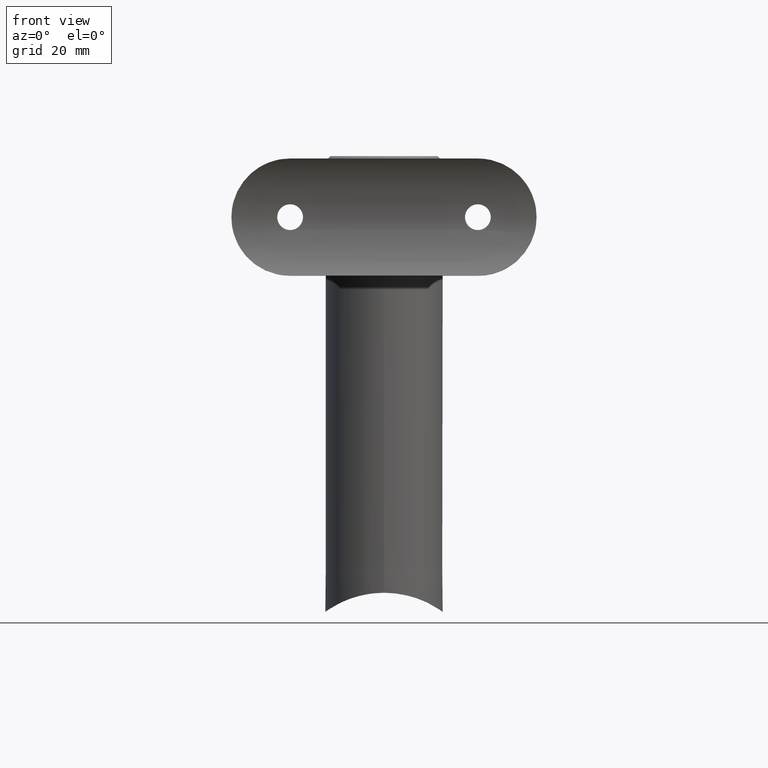
[diagram: clean part render]
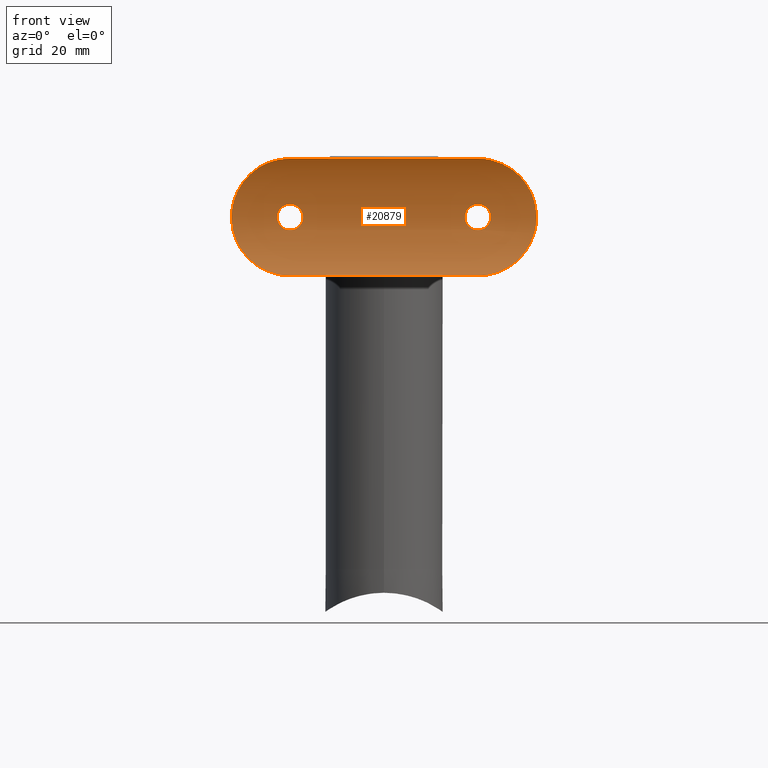
[diagram: same view with one face highlighted and labeled with its STEP entity id]
A machine part, front view. The second image highlights one B-rep face of the part: STEP entity #20879.
In plain terms, the highlighted cylindrical surface (partial cylindrical patch) has radius 21.2 mm, axis along (1, -0, -0).
Its self-contained STEP definition (entity closure, byte-faithful):
#43 = CARTESIAN_POINT ( 'NONE',  ( -1.220232600810219115, 4.034489897479165421, 17.52896393627658966 ) ) ;
#111 = CARTESIAN_POINT ( 'NONE',  ( -0.8872650160237232075, 4.017919217146488364, 17.39083392256410932 ) ) ;
#256 = CARTESIAN_POINT ( 'NONE',  ( 2.899666870893740089, 4.195241269652991711, 32.16611798350432139 ) ) ;
#516 = EDGE_CURVE ( 'NONE', #6899, #1200, #11149, .T. ) ;
#651 = CARTESIAN_POINT ( 'NONE',  ( -3.302492734939010965, 4.254893961373074518, -32.06307353030366158 ) ) ;
#798 = CARTESIAN_POINT ( 'NONE',  ( -12.16642152362135221, 7.838305269537122477, -22.89829279892429170 ) ) ;
#899 = CARTESIAN_POINT ( 'NONE',  ( -2.186773948034176129, 4.112846586535695792, -18.32292299748403863 ) ) ;
#958 = CARTESIAN_POINT ( 'NONE',  ( 1.819301347328477592, 4.077824434303353840, -22.06995905193007701 ) ) ;
#1029 = CARTESIAN_POINT ( 'NONE',  ( 1.217645684097064640, 4.034348782382250143, -17.52777022303583365 ) ) ;
#1048 = CARTESIAN_POINT ( 'NONE',  ( -1.220232600810218893, 4.034489897479164533, -22.47103606372340678 ) ) ;
#1115 = CARTESIAN_POINT ( 'NONE',  ( -1.378123184462039630, 4.044310109982500734, -22.38653694269787309 ) ) ;
#1138 = CARTESIAN_POINT ( 'NONE',  ( 2.072456574894707249, 4.101159231709450737, 18.18354421627330098 ) ) ;
#1167 = CARTESIAN_POINT ( 'NONE',  ( 2.188337416416101799, 4.113007975951379791, -21.67510126677116133 ) ) ;
#1193 = CARTESIAN_POINT ( 'NONE',  ( -2.750066109718241503, 4.179126174284530038, -19.82143988479807462 ) ) ;
#1200 = VERTEX_POINT ( 'NONE', #17901 ) ;
#1242 = CARTESIAN_POINT ( 'NONE',  ( 2.749871213976514461, 4.179100677581973677, -19.81625335284126876 ) ) ;
#1282 = CARTESIAN_POINT ( 'NONE',  ( 2.749871213976514461, 4.179100677581973677, 20.18374664715872413 ) ) ;
#1329 = CARTESIAN_POINT ( 'NONE',  ( -11.20502510935213358, 7.199201472346334896, 25.59990303977420467 ) ) ;
#1468 = CARTESIAN_POINT ( 'NONE',  ( -12.08472937843046857, 7.780467016947508974, 23.30072972297891454 ) ) ;
#1540 = CARTESIAN_POINT ( 'NONE',  ( -3.307977677724411869, 4.255752225252749987, 32.06158553790278631 ) ) ;
#1556 = CARTESIAN_POINT ( 'NONE',  ( 0.8482395851185927649, 4.000000000000004441, 32.50000000000000000 ) ) ;
#1611 = CARTESIAN_POINT ( 'NONE',  ( -0.8487943003396123398, 4.000000000000004441, 32.50000000000000711 ) ) ;
#1627 = CARTESIAN_POINT ( 'NONE',  ( -2.750066109718241503, 4.179126174284529149, 20.17856011520192894 ) ) ;
#1691 = CARTESIAN_POINT ( 'NONE',  ( -2.185395019286270557, 4.112698827525287371, 18.32094041698626441 ) ) ;
#1756 = ORIENTED_EDGE ( 'NONE', *, *, #516, .F. ) ;
#1911 = CARTESIAN_POINT ( 'NONE',  ( 9.913493343117123047, 6.458488917965734544, 27.62450805720243707 ) ) ;
#2058 = CARTESIAN_POINT ( 'NONE',  ( 10.82440004562426772, 6.964469962909634049, 26.30269686619442737 ) ) ;
#2176 = CARTESIAN_POINT ( 'NONE',  ( -7.664485972305215000, 5.431176652695318019, -29.88260659836541322 ) ) ;
#2248 = CARTESIAN_POINT ( 'NONE',  ( 0.000000000000000000, 4.000000000000003553, -32.50000000000000000 ) ) ;
#2306 = ORIENTED_EDGE ( 'NONE', *, *, #3348, .F. ) ;
#2319 = CARTESIAN_POINT ( 'NONE',  ( -4.488656383330082988, 4.477012003651389627, -31.67346302616766351 ) ) ;
#2396 = CARTESIAN_POINT ( 'NONE',  ( -9.404962878365171974, 6.198203738630026827, -28.24361247481622783 ) ) ;
#2451 = CARTESIAN_POINT ( 'NONE',  ( 12.50000000000000355, 8.077208171562682892, -20.00000000000000355 ) ) ;
#2480 = CARTESIAN_POINT ( 'NONE',  ( 0.000000000000000000, 4.000000000000003553, 17.25000000000000000 ) ) ;
#2526 = CARTESIAN_POINT ( 'NONE',  ( 11.20502510935213358, 7.199201472346334008, -25.59990303977420822 ) ) ;
#2624 = EDGE_CURVE ( 'NONE', #16306, #18264, #4971, .T. ) ;
#2704 = CARTESIAN_POINT ( 'NONE',  ( 2.661687631057439329, 4.167723121593580160, -19.28582453466965418 ) ) ;
#2746 = CARTESIAN_POINT ( 'NONE',  ( 9.919985569846220486, 6.456967504733636787, -27.64830385797707990 ) ) ;
#2780 = EDGE_CURVE ( 'NONE', #14045, #17653, #20728, .T. ) ;
#2817 = CARTESIAN_POINT ( 'NONE',  ( 2.662694855646243308, 4.167851017011681591, 19.28957292388486167 ) ) ;
#2867 = CARTESIAN_POINT ( 'NONE',  ( -2.072974537964579422, 4.101199954475355902, -18.18391155527806902 ) ) ;
#2914 = CARTESIAN_POINT ( 'NONE',  ( 2.750127420739391759, 4.179134195129150520, -20.17987132482983981 ) ) ;
#2948 = CARTESIAN_POINT ( 'NONE',  ( 2.609840854434543722, 4.161141973927121818, 19.11473913055440477 ) ) ;
#2997 = CARTESIAN_POINT ( 'NONE',  ( -4.105999603327870950, 4.397476152548232875, 31.81377709549067845 ) ) ;
#3024 = CARTESIAN_POINT ( 'NONE',  ( 0.7170653856862929665, 4.011384657461850800, 17.33895450424505569 ) ) ;
#3140 = CARTESIAN_POINT ( 'NONE',  ( -5.620677554943400267, 4.744079628429565432, 31.19483348254708943 ) ) ;
#3238 = FACE_BOUND ( 'NONE', #10739, .T. ) ;
#3348 = EDGE_CURVE ( 'NONE', #8308, #17246, #16805, .T. ) ;
#3435 = CARTESIAN_POINT ( 'NONE',  ( -2.608905194646347070, 4.161026952861326400, 19.11220103331600839 ) ) ;
#3583 = CARTESIAN_POINT ( 'NONE',  ( 7.341278511869139045, 5.308480845423155792, 30.12523760879152945 ) ) ;
#3656 = CARTESIAN_POINT ( 'NONE',  ( 11.20516604691104412, 7.199313738460709544, 25.59920734051991076 ) ) ;
#3721 = CARTESIAN_POINT ( 'NONE',  ( 12.16642152362135576, 7.838305269537123365, 22.89829279892429170 ) ) ;
#4048 = CARTESIAN_POINT ( 'NONE',  ( -9.137400882198218000, 6.067735843547091612, -28.53911077795326889 ) ) ;
#4183 = CARTESIAN_POINT ( 'NONE',  ( 1.680376849083642821, 4.050750502668658548, -32.41446829867825130 ) ) ;
#4193 = VERTEX_POINT ( 'NONE', #19426 ) ;
#4298 = CARTESIAN_POINT ( 'NONE',  ( -2.749933515456789657, 4.179108828000702935, -20.18059065072479896 ) ) ;
#4316 = CARTESIAN_POINT ( 'NONE',  ( 11.83620638877005504, 7.607798498856690017, -24.10069751121964643 ) ) ;
#4345 = CARTESIAN_POINT ( 'NONE',  ( 0.7170653856862895248, 4.011384657461851688, -22.66104549575494431 ) ) ;
#4364 = CARTESIAN_POINT ( 'NONE',  ( -2.471867391659464008, 4.144485322468558053, -18.78144226944219142 ) ) ;
#4439 = CARTESIAN_POINT ( 'NONE',  ( -1.676932437200538084, 4.065896379661495530, -22.18693385621928371 ) ) ;
#4468 = CARTESIAN_POINT ( 'NONE',  ( 1.221068417309932208, 4.034547152056659591, 17.52946335822547397 ) ) ;
#4488 = CARTESIAN_POINT ( 'NONE',  ( 0.7132524485124348557, 4.011257119951380901, -17.33794282899279438 ) ) ;
#4504 = CARTESIAN_POINT ( 'NONE',  ( -2.608905194646345738, 4.161026952861327288, -20.88779896668399161 ) ) ;
#4557 = CARTESIAN_POINT ( 'NONE',  ( 1.380612209768696141, 4.044466479386152891, -22.38518657137107226 ) ) ;
#4577 = CARTESIAN_POINT ( 'NONE',  ( -8.275097588008394567, 5.678865835620642954, 29.37734438678382176 ) ) ;
#4598 = CARTESIAN_POINT ( 'NONE',  ( 1.217645684097064418, 4.034348782382251031, 22.47222977696416990 ) ) ;
#4644 = CARTESIAN_POINT ( 'NONE',  ( -2.903656776258741967, 4.195777031998702888, 32.16519419076994524 ) ) ;
#4666 = CARTESIAN_POINT ( 'NONE',  ( 2.732401257049309251, 4.176793343845548456, 19.64134432217262116 ) ) ;
#4792 = CARTESIAN_POINT ( 'NONE',  ( -0.7124931324106920094, 4.011245734592164602, 17.33785575772860099 ) ) ;
#4793 = CARTESIAN_POINT ( 'NONE',  ( 0.000000000000000000, 4.000000000000003553, 32.50000000000000000 ) ) ;
#4919 = DIRECTION ( 'NONE',  ( 0.000000000000000000, 0.000000000000000000, -1.000000000000000000 ) ) ;
#4927 = CARTESIAN_POINT ( 'NONE',  ( -2.661820409375530438, 4.167739817158831350, 20.71384517538371739 ) ) ;
#4971 = B_SPLINE_CURVE_WITH_KNOTS ( 'NONE', 3,
 ( #2451, #20552, #13826, #15527, #4316, #2526, #20476, #2746, #5946, #12203, #5794, #15667, #14117, #17224, #17157, #17075, #10706, #12274, #15452, #4183, #9140, #18691 ),
 .UNSPECIFIED., .F., .F.,
 ( 4, 2, 2, 2, 2, 2, 2, 2, 2, 2, 4 ),
 ( 0.000000000000000000, 0.002503829590647115803, 0.005007659181294230738, 0.007511488771941346107, 0.01001531836258846148, 0.01126723315791201482, 0.01251914795323556644, 0.01502297754388266099, 0.01627489233920621087, 0.01752680713452976421, 0.02003063672517686050 ),
 .UNSPECIFIED. ) ;
#5126 = CARTESIAN_POINT ( 'NONE',  ( -12.49999999999999645, 8.077208171562682892, 20.00000000000000000 ) ) ;
#5204 = CARTESIAN_POINT ( 'NONE',  ( -12.49999999999999645, 8.077208171562682892, 32.50000000000006395 ) ) ;
#5246 = B_SPLINE_CURVE_WITH_KNOTS ( 'NONE', 3,
 ( #4793, #1556, #5403, #256, #11873, #6758, #6970, #13377, #19946, #3583, #15121, #6832, #16481, #18304, #6900, #1911, #14912, #2058, #3656, #8460, #8668, #11802, #3721, #18101, #8385, #11737 ),
 .UNSPECIFIED., .F., .F.,
 ( 4, 2, 2, 2, 2, 2, 2, 2, 2, 2, 2, 2, 4 ),
 ( 0.000000000000000000, 0.002504973849704574245, 0.003757460774556858982, 0.005009947699409142419, 0.007514921549113717965, 0.008767408473966002702, 0.01001989539881828657, 0.01127238232367057218, 0.01252486924852285778, 0.01502984309822744113, 0.01628233002307973715, 0.01753481694793202969, 0.02003979079763661478 ),
 .UNSPECIFIED. ) ;
#5403 = CARTESIAN_POINT ( 'NONE',  ( 1.678717414094957006, 4.050679987938036852, 32.41458363564551348 ) ) ;
#5550 = EDGE_CURVE ( 'NONE', #17653, #14045, #8647, .T. ) ;
#5663 = CARTESIAN_POINT ( 'NONE',  ( -8.575483413111351538, 5.809365382594060101, -29.10327369640211614 ) ) ;
#5761 = FACE_BOUND ( 'NONE', #18021, .T. ) ;
#5794 = CARTESIAN_POINT ( 'NONE',  ( 8.275097588008392790, 5.678865835620643843, -29.37734438678382887 ) ) ;
#5905 = CARTESIAN_POINT ( 'NONE',  ( 2.070070275079196609, 4.100923494947652514, -18.18081493655848746 ) ) ;
#5924 = CARTESIAN_POINT ( 'NONE',  ( -2.661820409375529994, 4.167739817158833127, -19.28615482461627906 ) ) ;
#5946 = CARTESIAN_POINT ( 'NONE',  ( 9.413556458363910195, 6.194533709361363272, -28.26249860773988587 ) ) ;
#6047 = CARTESIAN_POINT ( 'NONE',  ( 1.816424646654584141, 4.077575380348869238, -17.92750711898907667 ) ) ;
#6068 = CARTESIAN_POINT ( 'NONE',  ( -1.380068960992046900, 4.044440931482736978, -17.61463312970132833 ) ) ;
#6094 = CARTESIAN_POINT ( 'NONE',  ( 2.608656701138330369, 4.160994223088357202, 20.88876488091200301 ) ) ;
#6140 = CARTESIAN_POINT ( 'NONE',  ( -2.732448131527089874, 4.176798623020331114, -20.35916652536338489 ) ) ;
#6227 = CARTESIAN_POINT ( 'NONE',  ( 0.3580975733128176075, 4.002280310842218469, 22.73258916872026347 ) ) ;
#6312 = DIRECTION ( 'NONE',  ( -1.000000000000000000, 0.000000000000000000, 0.000000000000000000 ) ) ;
#6347 = CARTESIAN_POINT ( 'NONE',  ( -2.749933515456789657, 4.179108828000702047, 19.81940934927520104 ) ) ;
#6372 = AXIS2_PLACEMENT_3D ( 'NONE', #19349, #21053, #6312 ) ;
#6423 = CARTESIAN_POINT ( 'NONE',  ( -2.385800123763039515, 4.134436225150952104, 21.37932060871328588 ) ) ;
#6474 = CARTESIAN_POINT ( 'NONE',  ( -1.680376849083639712, 4.050750502668657660, 32.41446829867826551 ) ) ;
#6714 = EDGE_LOOP ( 'NONE', ( #9354, #12524, #10885, #1756, #10531, #12655 ) ) ;
#6757 = CARTESIAN_POINT ( 'NONE',  ( -0.8862475435800294399, 4.017876742908403465, 22.60950864251029202 ) ) ;
#6758 = CARTESIAN_POINT ( 'NONE',  ( 4.099810591710028262, 4.396262875489091115, 31.81591106829855065 ) ) ;
#6832 = CARTESIAN_POINT ( 'NONE',  ( 8.281128637814752835, 5.681454197595393829, 29.37193506601935766 ) ) ;
#6899 = VERTEX_POINT ( 'NONE', #5126 ) ;
#6900 = CARTESIAN_POINT ( 'NONE',  ( 9.404962878365170198, 6.198203738630029491, 28.24361247481621717 ) ) ;
#6970 = CARTESIAN_POINT ( 'NONE',  ( 4.488656383330081212, 4.477012003651386962, 31.67346302616766351 ) ) ;
#7234 = CARTESIAN_POINT ( 'NONE',  ( -1.678717414094956784, 4.050679987938036852, -32.41458363564551348 ) ) ;
#7296 = CARTESIAN_POINT ( 'NONE',  ( -8.281128637814752835, 5.681454197595392053, -29.37193506601935411 ) ) ;
#7407 = CARTESIAN_POINT ( 'NONE',  ( -0.3619936041940361449, 4.002356275409493236, -17.26800078217016932 ) ) ;
#7461 = CARTESIAN_POINT ( 'NONE',  ( 0.000000000000000000, 4.000000000000003553, -22.75000000000000000 ) ) ;
#7549 = CARTESIAN_POINT ( 'NONE',  ( -1.677753435559828254, 4.065965523637381729, -17.81374547399454400 ) ) ;
#7603 = CARTESIAN_POINT ( 'NONE',  ( 2.385756333773411786, 4.134429975355507381, -18.62054771452227087 ) ) ;
#7621 = CARTESIAN_POINT ( 'NONE',  ( -0.8862475435800293289, 4.017876742908402576, -17.39049135748971153 ) ) ;
#7674 = CARTESIAN_POINT ( 'NONE',  ( 0.3580975733128176075, 4.002280310842217581, -17.26741083127973297 ) ) ;
#7717 = CARTESIAN_POINT ( 'NONE',  ( 0.000000000000000000, 4.000000000000003553, 17.25000000000000000 ) ) ;
#7746 = CARTESIAN_POINT ( 'NONE',  ( 2.470320627314231299, 4.144303149418655963, -18.77831722767231426 ) ) ;
#7854 = CARTESIAN_POINT ( 'NONE',  ( 2.188337416416100911, 4.113007975951380679, 18.32489873322883511 ) ) ;
#7979 = CARTESIAN_POINT ( 'NONE',  ( -2.609815282663083824, 4.161138554378243981, 20.88536745762975144 ) ) ;
#8046 = CARTESIAN_POINT ( 'NONE',  ( -2.072974537964578978, 4.101199954475355902, 21.81608844472193454 ) ) ;
#8110 = EDGE_CURVE ( 'NONE', #4193, #9713, #5246, .T. ) ;
#8114 = CARTESIAN_POINT ( 'NONE',  ( -2.386425186726744307, 4.134502214352236749, 18.62153443939003594 ) ) ;
#8138 = B_SPLINE_CURVE_WITH_KNOTS ( 'NONE', 3,
 ( #14302, #16064, #19301, #1468, #9748, #1329, #9610, #14434, #21075, #11363, #4577, #17546, #11236, #17679, #3140, #14372, #2997, #1540, #4644, #6474, #1611, #17816 ),
 .UNSPECIFIED., .F., .F.,
 ( 4, 2, 2, 2, 2, 2, 2, 2, 2, 2, 4 ),
 ( 0.000000000000000000, 0.002503829590647099756, 0.005007659181294199513, 0.007511488771941299269, 0.01001531836258839729, 0.01126723315791194890, 0.01251914795323550399, 0.01502297754388261589, 0.01627489233920617964, 0.01752680713452973993, 0.02003063672517685703 ),
 .UNSPECIFIED. ) ;
#8308 = VERTEX_POINT ( 'NONE', #20658 ) ;
#8320 = CARTESIAN_POINT ( 'NONE',  ( -1.219185299398133804, 4.034429665306586976, 22.47154956850332752 ) ) ;
#8385 = CARTESIAN_POINT ( 'NONE',  ( 12.50000000000000355, 8.077208171562681116, 20.84935178333090988 ) ) ;
#8460 = CARTESIAN_POINT ( 'NONE',  ( 11.67708478872317279, 7.504780197938368147, 24.47882887395968510 ) ) ;
#8647 = B_SPLINE_CURVE_WITH_KNOTS ( 'NONE', 3,
 ( #11378, #19600, #9894, #4792, #111, #43, #11519, #14578, #16139, #19453, #1691, #8114, #14641, #3435, #19317, #21090, #6347, #1627, #17693, #4927, #7979, #9624, #6423, #17754, #8046, #17830, #19385, #21021, #8320, #6757, #18166, #19735, #14911, #18100 ),
 .UNSPECIFIED., .F., .F.,
 ( 4, 2, 2, 2, 2, 2, 2, 2, 2, 2, 2, 2, 2, 2, 2, 2, 4 ),
 ( 0.000000000000000000, 0.0005379262171995823072, 0.001075852434399164614, 0.001613778651598747572, 0.002151704868798330530, 0.002689631085997913271, 0.003227557303197496879, 0.003765483520397080053, 0.004303409737596663662, 0.004841335954796246836, 0.005379262171995830011, 0.005917188389195414053, 0.006455114606394996360, 0.006993040823594579534, 0.007530967040794162709, 0.008068893257993746751, 0.008606819475193329058 ),
 .UNSPECIFIED. ) ;
#8648 = CARTESIAN_POINT ( 'NONE',  ( -11.20516604691104590, 7.199313738460708656, -25.59920734051991431 ) ) ;
#8668 = CARTESIAN_POINT ( 'NONE',  ( 11.81770469574649418, 7.598751313526327600, 24.09442063569178671 ) ) ;
#9140 = CARTESIAN_POINT ( 'NONE',  ( 0.8487943003396093422, 4.000000000000001776, -32.49999999999999289 ) ) ;
#9167 = CARTESIAN_POINT ( 'NONE',  ( 2.387698105049158137, 4.134650465052295942, -21.37611142759942240 ) ) ;
#9185 = CARTESIAN_POINT ( 'NONE',  ( -2.385800123763039959, 4.134436225150952104, -18.62067939128672478 ) ) ;
#9310 = CARTESIAN_POINT ( 'NONE',  ( 3.367779122181911787E-16, 3.999999999999998224, -17.25000000000000000 ) ) ;
#9354 = ORIENTED_EDGE ( 'NONE', *, *, #17204, .T. ) ;
#9431 = CARTESIAN_POINT ( 'NONE',  ( 2.470320627314229078, 4.144303149418653298, 21.22168277232768574 ) ) ;
#9498 = CARTESIAN_POINT ( 'NONE',  ( 2.186190614506501539, 4.112784812963470316, 21.67788333596032757 ) ) ;
#9566 = CARTESIAN_POINT ( 'NONE',  ( 0.8866782665786214768, 4.017902508735801348, 22.60928778284144869 ) ) ;
#9610 = CARTESIAN_POINT ( 'NONE',  ( -10.82196766755579631, 6.962884092408002878, 26.30774772896643654 ) ) ;
#9624 = CARTESIAN_POINT ( 'NONE',  ( -2.471867391659464452, 4.144485322468556276, 21.21855773055780503 ) ) ;
#9713 = VERTEX_POINT ( 'NONE', #16629 ) ;
#9748 = CARTESIAN_POINT ( 'NONE',  ( -11.83620638877005682, 7.607798498856687353, 24.10069751121964288 ) ) ;
#9894 = CARTESIAN_POINT ( 'NONE',  ( -0.3607321243662356958, 4.002339135696567851, 17.26787065371323493 ) ) ;
#10087 = EDGE_CURVE ( 'NONE', #18264, #1200, #19002, .T. ) ;
#10091 = CYLINDRICAL_SURFACE ( 'NONE', #6372, 21.19999999999999929 ) ;
#10300 = CARTESIAN_POINT ( 'NONE',  ( -12.49999999999999289, 8.077208171562679340, -20.84935178333090988 ) ) ;
#10501 = CARTESIAN_POINT ( 'NONE',  ( -6.332596659029534614, 4.955350400242432229, -30.80774938862475310 ) ) ;
#10531 = ORIENTED_EDGE ( 'NONE', *, *, #15397, .T. ) ;
#10558 = CARTESIAN_POINT ( 'NONE',  ( 3.367779122181911787E-16, 3.999999999999998224, 22.75000000000000000 ) ) ;
#10572 = CARTESIAN_POINT ( 'NONE',  ( -12.06337854131604104, 7.766211032369477074, -23.30110932669051138 ) ) ;
#10680 = CARTESIAN_POINT ( 'NONE',  ( -0.7124931324106918984, 4.011245734592165491, -22.66214424227139190 ) ) ;
#10706 = CARTESIAN_POINT ( 'NONE',  ( 4.105999603327869174, 4.397476152548234651, -31.81377709549067845 ) ) ;
#10739 = EDGE_LOOP ( 'NONE', ( #2306, #13311 ) ) ;
#10756 = CARTESIAN_POINT ( 'NONE',  ( -1.219185299398133582, 4.034429665306586976, -17.52845043149667958 ) ) ;
#10863 = VECTOR ( 'NONE', #4919, 1000.000000000000000 ) ;
#10876 = CARTESIAN_POINT ( 'NONE',  ( 0.8866782665786214768, 4.017902508735802236, -17.39071221715855486 ) ) ;
#10885 = ORIENTED_EDGE ( 'NONE', *, *, #10087, .T. ) ;
#10897 = CARTESIAN_POINT ( 'NONE',  ( -0.1819051431628468940, 4.000000000000002665, -22.74999999999999645 ) ) ;
#10944 = CARTESIAN_POINT ( 'NONE',  ( 2.609840854434544610, 4.161141973927123594, -20.88526086944559879 ) ) ;
#10961 = CARTESIAN_POINT ( 'NONE',  ( -2.661782999446305809, 4.167734782188001752, -20.71427211081360298 ) ) ;
#10968 = CARTESIAN_POINT ( 'NONE',  ( 12.49999999999999645, 8.077208171562682892, 32.50000000000000000 ) ) ;
#11063 = CARTESIAN_POINT ( 'NONE',  ( 1.819301347328477370, 4.077824434303353840, 17.93004094806991944 ) ) ;
#11121 = CARTESIAN_POINT ( 'NONE',  ( 1.380612209768696363, 4.044466479386152002, 17.61481342862892419 ) ) ;
#11149 = LINE ( 'NONE', #5204, #18464 ) ;
#11196 = CARTESIAN_POINT ( 'NONE',  ( 2.385756333773413562, 4.134429975355512710, 21.37945228547771492 ) ) ;
#11236 = CARTESIAN_POINT ( 'NONE',  ( -7.329839308601783898, 5.304310467230258119, 30.13339322785993701 ) ) ;
#11363 = CARTESIAN_POINT ( 'NONE',  ( -8.570261194392809756, 5.807054850030221260, 29.10818890720388197 ) ) ;
#11378 = CARTESIAN_POINT ( 'NONE',  ( 0.000000000000000000, 4.000000000000003553, 17.25000000000000000 ) ) ;
#11519 = CARTESIAN_POINT ( 'NONE',  ( -1.378123184462039408, 4.044310109982500734, 17.61346305730212336 ) ) ;
#11737 = CARTESIAN_POINT ( 'NONE',  ( 12.50000000000000355, 8.077208171562682892, 20.00000000000000000 ) ) ;
#11802 = CARTESIAN_POINT ( 'NONE',  ( 12.06337854131604459, 7.766211032369483291, 23.30110932669050783 ) ) ;
#11873 = CARTESIAN_POINT ( 'NONE',  ( 3.302492734939012298, 4.254893961373074518, 32.06307353030366158 ) ) ;
#11926 = CARTESIAN_POINT ( 'NONE',  ( -2.899666870893738757, 4.195241269652990823, -32.16611798350430007 ) ) ;
#12140 = CARTESIAN_POINT ( 'NONE',  ( -7.341278511869139933, 5.308480845423154904, -30.12523760879152235 ) ) ;
#12203 = CARTESIAN_POINT ( 'NONE',  ( 8.570261194392809756, 5.807054850030222148, -29.10818890720387841 ) ) ;
#12274 = CARTESIAN_POINT ( 'NONE',  ( 3.307977677724409205, 4.255752225252751764, -32.06158553790278631 ) ) ;
#12322 = CARTESIAN_POINT ( 'NONE',  ( -1.816481100832602724, 4.077571559917685384, -17.92736952535673822 ) ) ;
#12517 = CARTESIAN_POINT ( 'NONE',  ( 1.377716734148543232, 4.044278123502422773, -17.61315663529562414 ) ) ;
#12524 = ORIENTED_EDGE ( 'NONE', *, *, #2624, .T. ) ;
#12590 = CARTESIAN_POINT ( 'NONE',  ( 0.1795313291912451481, 3.999999999999999112, -17.24999999999999289 ) ) ;
#12606 = CARTESIAN_POINT ( 'NONE',  ( -2.609815282663082936, 4.161138554378242205, -19.11463254237025211 ) ) ;
#12655 = ORIENTED_EDGE ( 'NONE', *, *, #8110, .T. ) ;
#12700 = CARTESIAN_POINT ( 'NONE',  ( 2.661687631057439773, 4.167723121593580160, 20.71417546533035292 ) ) ;
#12716 = EDGE_CURVE ( 'NONE', #17246, #8308, #18858, .T. ) ;
#12768 = CARTESIAN_POINT ( 'NONE',  ( 2.387698105049158137, 4.134650465052295054, 18.62388857240058826 ) ) ;
#12842 = CARTESIAN_POINT ( 'NONE',  ( 1.678074891520450418, 4.065981542221560829, 22.18613570155991610 ) ) ;
#13311 = ORIENTED_EDGE ( 'NONE', *, *, #12716, .F. ) ;
#13377 = CARTESIAN_POINT ( 'NONE',  ( 5.620540116801272745, 4.743934902012521881, 31.19511631914027916 ) ) ;
#13475 = CARTESIAN_POINT ( 'NONE',  ( 12.50000000000000355, 8.077208171562682892, -20.00000000000000355 ) ) ;
#13562 = CARTESIAN_POINT ( 'NONE',  ( -12.49999999999999645, 8.077208171562682892, -20.00000000000000355 ) ) ;
#13631 = CARTESIAN_POINT ( 'NONE',  ( -4.099810591710025598, 4.396262875489092004, -31.81591106829854354 ) ) ;
#13697 = CARTESIAN_POINT ( 'NONE',  ( -5.620540116801275410, 4.743934902012521881, -31.19511631914028982 ) ) ;
#13772 = CARTESIAN_POINT ( 'NONE',  ( -10.15465027284116317, 6.588481366190972466, -27.30023861733291213 ) ) ;
#13826 = CARTESIAN_POINT ( 'NONE',  ( 12.41450038045377191, 8.013930239834728297, -21.67799915308982150 ) ) ;
#14017 = CARTESIAN_POINT ( 'NONE',  ( -1.818257073104401655, 4.077733854882374054, -22.07088236385675373 ) ) ;
#14045 = VERTEX_POINT ( 'NONE', #15307 ) ;
#14075 = CARTESIAN_POINT ( 'NONE',  ( 2.072456574894706804, 4.101159231709450737, -21.81645578372669902 ) ) ;
#14117 = CARTESIAN_POINT ( 'NONE',  ( 7.329839308601783898, 5.304310467230258119, -30.13339322785992636 ) ) ;
#14161 = CARTESIAN_POINT ( 'NONE',  ( -0.3607321243662358623, 4.002339135696568739, -22.73212934628677218 ) ) ;
#14189 = CARTESIAN_POINT ( 'NONE',  ( 1.816424646654584585, 4.077575380348867462, 22.07249288101091977 ) ) ;
#14218 = CARTESIAN_POINT ( 'NONE',  ( 1.681080587850646069, 4.066220009834250249, -22.18384365538448222 ) ) ;
#14233 = CARTESIAN_POINT ( 'NONE',  ( -2.185395019286271001, 4.112698827525288259, -21.67905958301373914 ) ) ;
#14283 = CARTESIAN_POINT ( 'NONE',  ( 2.472041895201344985, 4.144506056729610144, -21.21818100494818182 ) ) ;
#14302 = CARTESIAN_POINT ( 'NONE',  ( -12.49999999999999645, 8.077208171562682892, 20.00000000000000000 ) ) ;
#14372 = CARTESIAN_POINT ( 'NONE',  ( -4.492959243642649092, 4.477970880216996186, 31.67175631405216762 ) ) ;
#14391 = CARTESIAN_POINT ( 'NONE',  ( 0.3616363690777179007, 4.002339231935220454, 17.26786438213850872 ) ) ;
#14434 = CARTESIAN_POINT ( 'NONE',  ( -9.919985569846220486, 6.456967504733637675, 27.64830385797707635 ) ) ;
#14457 = CARTESIAN_POINT ( 'NONE',  ( 2.070070275079196165, 4.100923494947650738, 21.81918506344151965 ) ) ;
#14578 = CARTESIAN_POINT ( 'NONE',  ( -1.676932437200538084, 4.065896379661494642, 17.81306614378071274 ) ) ;
#14641 = CARTESIAN_POINT ( 'NONE',  ( -2.471724177027320835, 4.144469781418969490, 18.78133150012136099 ) ) ;
#14765 = CARTESIAN_POINT ( 'NONE',  ( 3.367779122181911787E-16, 3.999999999999998224, -17.25000000000000000 ) ) ;
#14911 = CARTESIAN_POINT ( 'NONE',  ( -0.1795745097806660528, 3.999999999999997335, 22.74999999999998934 ) ) ;
#14912 = CARTESIAN_POINT ( 'NONE',  ( 10.15465027284116317, 6.588481366190970689, 27.30023861733291213 ) ) ;
#15121 = CARTESIAN_POINT ( 'NONE',  ( 7.664485972305213224, 5.431176652695318019, 29.88260659836541322 ) ) ;
#15307 = CARTESIAN_POINT ( 'NONE',  ( 3.367779122181911787E-16, 3.999999999999998224, 22.75000000000000000 ) ) ;
#15397 = EDGE_CURVE ( 'NONE', #6899, #4193, #8138, .T. ) ;
#15452 = CARTESIAN_POINT ( 'NONE',  ( 2.903656776258744632, 4.195777031998701112, -32.16519419076994524 ) ) ;
#15527 = CARTESIAN_POINT ( 'NONE',  ( 12.08472937843047212, 7.780467016947507197, -23.30072972297891809 ) ) ;
#15573 = CARTESIAN_POINT ( 'NONE',  ( -2.732132821934195821, 4.176757944270248935, -19.63901098424382141 ) ) ;
#15643 = CARTESIAN_POINT ( 'NONE',  ( -2.386425186726744307, 4.134502214352236749, -21.37846556060996051 ) ) ;
#15667 = CARTESIAN_POINT ( 'NONE',  ( 7.655030421865176571, 5.427483003039802689, -29.89001198582322516 ) ) ;
#15697 = CARTESIAN_POINT ( 'NONE',  ( 0.3616363690777144591, 4.002339231935219566, -22.73213561786149484 ) ) ;
#15768 = CARTESIAN_POINT ( 'NONE',  ( 1.678074891520450196, 4.065981542221560829, -17.81386429844008745 ) ) ;
#15788 = CARTESIAN_POINT ( 'NONE',  ( -2.471724177027322167, 4.144469781418969490, -21.21866849987864612 ) ) ;
#15818 = CARTESIAN_POINT ( 'NONE',  ( 0.8904061588435610020, 4.018060069706598014, 17.39198614835049383 ) ) ;
#15862 = CARTESIAN_POINT ( 'NONE',  ( -0.7148038119665005574, 4.011319192678679535, -17.33843756299079075 ) ) ;
#15910 = CARTESIAN_POINT ( 'NONE',  ( 1.221068417309932652, 4.034547152056658703, -22.47053664177452603 ) ) ;
#15948 = CARTESIAN_POINT ( 'NONE',  ( 2.472041895201344541, 4.144506056729610144, 18.78181899505182528 ) ) ;
#16018 = CARTESIAN_POINT ( 'NONE',  ( 0.1818614021479883769, 4.000000000000005329, 17.25000000000001066 ) ) ;
#16047 = ORIENTED_EDGE ( 'NONE', *, *, #2780, .F. ) ;
#16064 = CARTESIAN_POINT ( 'NONE',  ( -12.49999999999999822, 8.077208171562684669, 20.84887060648279089 ) ) ;
#16085 = CARTESIAN_POINT ( 'NONE',  ( 0.000000000000000000, 4.000000000000003553, -32.50000000000000000 ) ) ;
#16139 = CARTESIAN_POINT ( 'NONE',  ( -1.818257073104400767, 4.077733854882373166, 17.92911763614324627 ) ) ;
#16306 = VERTEX_POINT ( 'NONE', #13475 ) ;
#16428 = FACE_OUTER_BOUND ( 'NONE', #6714, .T. ) ;
#16481 = CARTESIAN_POINT ( 'NONE',  ( 8.575483413111351538, 5.809365382594063654, 29.10327369640210193 ) ) ;
#16629 = CARTESIAN_POINT ( 'NONE',  ( 12.50000000000000355, 8.077208171562682892, 20.00000000000000000 ) ) ;
#16735 = CARTESIAN_POINT ( 'NONE',  ( -9.913493343117119494, 6.458488917965730991, -27.62450805720244063 ) ) ;
#16805 = B_SPLINE_CURVE_WITH_KNOTS ( 'NONE', 3,
 ( #20600, #10897, #14161, #10680, #17269, #1048, #1115, #4439, #14017, #20672, #14233, #15643, #15788, #4504, #10961, #6140, #4298, #1193, #15573, #5924, #12606, #4364, #9185, #899, #2867, #12322, #7549, #6068, #10756, #7621, #15862, #7407, #20385, #18895 ),
 .UNSPECIFIED., .F., .F.,
 ( 4, 2, 2, 2, 2, 2, 2, 2, 2, 2, 2, 2, 2, 2, 2, 2, 4 ),
 ( 0.000000000000000000, 0.0005379262171995831746, 0.001075852434399166349, 0.001613778651598749307, 0.002151704868798332265, 0.002689631085997915873, 0.003227557303197499047, 0.003765483520397082222, 0.004303409737596665396, 0.004841335954796248571, 0.005379262171995831746, 0.005917188389195414920, 0.006455114606394998095, 0.006993040823594581269, 0.007530967040794164444, 0.008068893257993748486, 0.008606819475193330793 ),
 .UNSPECIFIED. ) ;
#17022 = CARTESIAN_POINT ( 'NONE',  ( -10.82440004562427127, 6.964469962909638490, -26.30269686619442737 ) ) ;
#17075 = CARTESIAN_POINT ( 'NONE',  ( 4.492959243642643763, 4.477970880216996186, -31.67175631405216052 ) ) ;
#17157 = CARTESIAN_POINT ( 'NONE',  ( 5.620677554943397602, 4.744079628429568984, -31.19483348254708588 ) ) ;
#17181 = CARTESIAN_POINT ( 'NONE',  ( 0.8904061588435608909, 4.018060069706597126, -22.60801385164950972 ) ) ;
#17204 = EDGE_CURVE ( 'NONE', #9713, #16306, #19227, .T. ) ;
#17224 = CARTESIAN_POINT ( 'NONE',  ( 6.328572668113499944, 4.954279635400568260, -30.80962434064442235 ) ) ;
#17246 = VERTEX_POINT ( 'NONE', #14765 ) ;
#17254 = CARTESIAN_POINT ( 'NONE',  ( 2.608656701138330813, 4.160994223088359867, -19.11123511908800765 ) ) ;
#17269 = CARTESIAN_POINT ( 'NONE',  ( -0.8872650160237236516, 4.017919217146489252, -22.60916607743590134 ) ) ;
#17326 = CARTESIAN_POINT ( 'NONE',  ( 0.1818614021479880161, 4.000000000000003553, -22.75000000000000355 ) ) ;
#17358 = ORIENTED_EDGE ( 'NONE', *, *, #5550, .F. ) ;
#17400 = CARTESIAN_POINT ( 'NONE',  ( 2.186190614506498875, 4.112784812963467651, -18.32211666403967243 ) ) ;
#17434 = CARTESIAN_POINT ( 'NONE',  ( 0.1795313291912451759, 3.999999999999999112, 22.75000000000000355 ) ) ;
#17546 = CARTESIAN_POINT ( 'NONE',  ( -7.655030421865182788, 5.427483003039802689, 29.89001198582322161 ) ) ;
#17569 = CARTESIAN_POINT ( 'NONE',  ( 2.750127420739392203, 4.179134195129150520, 19.82012867517016375 ) ) ;
#17653 = VERTEX_POINT ( 'NONE', #2480 ) ;
#17679 = CARTESIAN_POINT ( 'NONE',  ( -6.328572668113499944, 4.954279635400570037, 30.80962434064442235 ) ) ;
#17693 = CARTESIAN_POINT ( 'NONE',  ( -2.732132821934195377, 4.176757944270248935, 20.36098901575618214 ) ) ;
#17754 = CARTESIAN_POINT ( 'NONE',  ( -2.186773948034173465, 4.112846586535696680, 21.67707700251596492 ) ) ;
#17816 = CARTESIAN_POINT ( 'NONE',  ( 0.000000000000000000, 4.000000000000003553, 32.50000000000000000 ) ) ;
#17830 = CARTESIAN_POINT ( 'NONE',  ( -1.816481100832603390, 4.077571559917688049, 22.07263047464326888 ) ) ;
#17901 = CARTESIAN_POINT ( 'NONE',  ( -12.49999999999999645, 8.077208171562682892, -20.00000000000000355 ) ) ;
#18021 = EDGE_LOOP ( 'NONE', ( #17358, #16047 ) ) ;
#18100 = CARTESIAN_POINT ( 'NONE',  ( 3.367779122181911787E-16, 3.999999999999998224, 22.75000000000000000 ) ) ;
#18101 = CARTESIAN_POINT ( 'NONE',  ( 12.41439949553292799, 8.013851170719203054, 21.67938694774174380 ) ) ;
#18166 = CARTESIAN_POINT ( 'NONE',  ( -0.7148038119665032220, 4.011319192678679535, 22.66156243700921635 ) ) ;
#18264 = VERTEX_POINT ( 'NONE', #16085 ) ;
#18304 = CARTESIAN_POINT ( 'NONE',  ( 9.137400882198218000, 6.067735843547090724, 28.53911077795327600 ) ) ;
#18464 = VECTOR ( 'NONE', #19883, 1000.000000000000000 ) ;
#18640 = CARTESIAN_POINT ( 'NONE',  ( -11.67708478872317457, 7.504780197938366371, -24.47882887395969220 ) ) ;
#18691 = CARTESIAN_POINT ( 'NONE',  ( 0.000000000000000000, 4.000000000000003553, -32.50000000000000000 ) ) ;
#18858 = B_SPLINE_CURVE_WITH_KNOTS ( 'NONE', 3,
 ( #9310, #12590, #7674, #4488, #10876, #1029, #12517, #15768, #6047, #5905, #17400, #7603, #7746, #17254, #2704, #18876, #1242, #2914, #19019, #20653, #10944, #14283, #9167, #1167, #14075, #958, #14218, #4557, #15910, #17181, #4345, #15697, #17326, #7461 ),
 .UNSPECIFIED., .F., .F.,
 ( 4, 2, 2, 2, 2, 2, 2, 2, 2, 2, 2, 2, 2, 2, 2, 2, 4 ),
 ( 0.008606819475193330793, 0.009144616342346782376, 0.009682413209500233958, 0.01022021007665368728, 0.01075800694380714059, 0.01129580381096059218, 0.01183360067811404549, 0.01237139754526749708, 0.01290919441242095039, 0.01344699127957440371, 0.01398478814672785529, 0.01452258501388131035, 0.01506038188103476193, 0.01559817874818821351, 0.01613597561534166683, 0.01667377248249512015, 0.01721156934964857346 ),
 .UNSPECIFIED. ) ;
#18876 = CARTESIAN_POINT ( 'NONE',  ( 2.731872538062281031, 4.176724228345035428, -19.63737060738939277 ) ) ;
#18895 = CARTESIAN_POINT ( 'NONE',  ( 3.367779122181911787E-16, 3.999999999999998224, -17.25000000000000000 ) ) ;
#19002 = B_SPLINE_CURVE_WITH_KNOTS ( 'NONE', 3,
 ( #2248, #20140, #7234, #11926, #651, #13631, #2319, #13697, #10501, #12140, #2176, #7296, #5663, #4048, #2396, #16735, #13772, #17022, #8648, #18640, #20282, #10572, #798, #19993, #10300, #13562 ),
 .UNSPECIFIED., .F., .F.,
 ( 4, 2, 2, 2, 2, 2, 2, 2, 2, 2, 2, 2, 4 ),
 ( 0.000000000000000000, 0.002504973849704560367, 0.003757460774556842503, 0.005009947699409125071, 0.007514921549113700618, 0.008767408473965990559, 0.01001989539881828310, 0.01127238232367057391, 0.01252486924852286646, 0.01502984309822744460, 0.01628233002307974062, 0.01753481694793203316, 0.02003979079763661131 ),
 .UNSPECIFIED. ) ;
#19019 = CARTESIAN_POINT ( 'NONE',  ( 2.732401257049309251, 4.176793343845547568, -20.35865567782738594 ) ) ;
#19191 = CARTESIAN_POINT ( 'NONE',  ( 1.681080587850646069, 4.066220009834250249, 17.81615634461552489 ) ) ;
#19227 = LINE ( 'NONE', #10968, #10863 ) ;
#19301 = CARTESIAN_POINT ( 'NONE',  ( -12.41450038045377013, 8.013930239834728297, 21.67799915308982150 ) ) ;
#19317 = CARTESIAN_POINT ( 'NONE',  ( -2.661782999446304920, 4.167734782188003528, 19.28572788918639347 ) ) ;
#19349 = CARTESIAN_POINT ( 'NONE',  ( 0.000000000000000000, 25.19999999999999929, 32.50000000000000000 ) ) ;
#19385 = CARTESIAN_POINT ( 'NONE',  ( -1.677753435559828254, 4.065965523637380841, 22.18625452600545600 ) ) ;
#19426 = CARTESIAN_POINT ( 'NONE',  ( 0.000000000000000000, 4.000000000000003553, 32.50000000000000000 ) ) ;
#19453 = CARTESIAN_POINT ( 'NONE',  ( -2.071631555332959618, 4.101077549125282218, 18.18259656438757332 ) ) ;
#19600 = CARTESIAN_POINT ( 'NONE',  ( -0.1819051431628467552, 4.000000000000003553, 17.24999999999999645 ) ) ;
#19735 = CARTESIAN_POINT ( 'NONE',  ( -0.3619936041940390870, 4.002356275409493236, 22.73199921782983779 ) ) ;
#19883 = DIRECTION ( 'NONE',  ( 0.000000000000000000, 0.000000000000000000, -1.000000000000000000 ) ) ;
#19946 = CARTESIAN_POINT ( 'NONE',  ( 6.332596659029535502, 4.955350400242434006, 30.80774938862474954 ) ) ;
#19993 = CARTESIAN_POINT ( 'NONE',  ( -12.41439949553292443, 8.013851170719201278, -21.67938694774175090 ) ) ;
#20140 = CARTESIAN_POINT ( 'NONE',  ( -0.8482395851185927649, 4.000000000000004441, -32.50000000000000000 ) ) ;
#20282 = CARTESIAN_POINT ( 'NONE',  ( -11.81770469574649063, 7.598751313526324935, -24.09442063569179027 ) ) ;
#20385 = CARTESIAN_POINT ( 'NONE',  ( -0.1795745097806664692, 3.999999999999999112, -17.25000000000000355 ) ) ;
#20476 = CARTESIAN_POINT ( 'NONE',  ( 10.82196766755579453, 6.962884092408004655, -26.30774772896643654 ) ) ;
#20552 = CARTESIAN_POINT ( 'NONE',  ( 12.50000000000000355, 8.077208171562682892, -20.84887060648279089 ) ) ;
#20600 = CARTESIAN_POINT ( 'NONE',  ( 0.000000000000000000, 4.000000000000003553, -22.75000000000000000 ) ) ;
#20653 = CARTESIAN_POINT ( 'NONE',  ( 2.662694855646243308, 4.167851017011681591, -20.71042707611513478 ) ) ;
#20658 = CARTESIAN_POINT ( 'NONE',  ( 0.000000000000000000, 4.000000000000003553, -22.75000000000000000 ) ) ;
#20672 = CARTESIAN_POINT ( 'NONE',  ( -2.071631555332959174, 4.101077549125281330, -21.81740343561241957 ) ) ;
#20728 = B_SPLINE_CURVE_WITH_KNOTS ( 'NONE', 3,
 ( #10558, #17434, #6227, #20760, #9566, #4598, #20896, #12842, #14189, #14457, #9498, #11196, #9431, #6094, #12700, #20833, #1282, #17569, #4666, #2817, #2948, #15948, #12768, #7854, #1138, #11063, #19191, #11121, #4468, #15818, #3024, #14391, #16018, #7717 ),
 .UNSPECIFIED., .F., .F.,
 ( 4, 2, 2, 2, 2, 2, 2, 2, 2, 2, 2, 2, 2, 2, 2, 2, 4 ),
 ( 0.008606819475193329058, 0.009144616342346780641, 0.009682413209500233958, 0.01022021007665368728, 0.01075800694380713886, 0.01129580381096059218, 0.01183360067811404549, 0.01237139754526749708, 0.01290919441242095039, 0.01344699127957440371, 0.01398478814672785356, 0.01452258501388130688, 0.01506038188103476019, 0.01559817874818821351, 0.01613597561534166336, 0.01667377248249511668, 0.01721156934964856999 ),
 .UNSPECIFIED. ) ;
#20760 = CARTESIAN_POINT ( 'NONE',  ( 0.7132524485124349667, 4.011257119951380012, 22.66205717100719852 ) ) ;
#20833 = CARTESIAN_POINT ( 'NONE',  ( 2.731872538062281919, 4.176724228345036316, 20.36262939261059657 ) ) ;
#20879 = ADVANCED_FACE ( 'NONE', ( #16428, #3238, #5761 ), #10091, .F. ) ;
#20896 = CARTESIAN_POINT ( 'NONE',  ( 1.377716734148542566, 4.044278123502423661, 22.38684336470438296 ) ) ;
#21021 = CARTESIAN_POINT ( 'NONE',  ( -1.380068960992046900, 4.044440931482738755, 22.38536687029868233 ) ) ;
#21053 = DIRECTION ( 'NONE',  ( 0.000000000000000000, 0.000000000000000000, -1.000000000000000000 ) ) ;
#21075 = CARTESIAN_POINT ( 'NONE',  ( -9.413556458363908419, 6.194533709361361495, 28.26249860773988232 ) ) ;
#21090 = CARTESIAN_POINT ( 'NONE',  ( -2.732448131527089874, 4.176798623020332890, 19.64083347463661511 ) ) ;